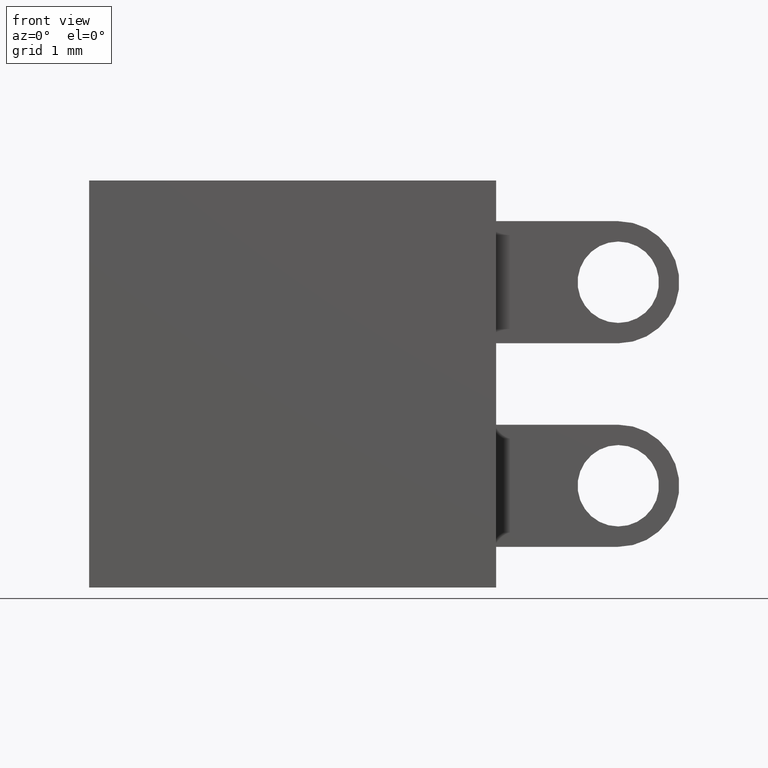
[diagram: clean part render]
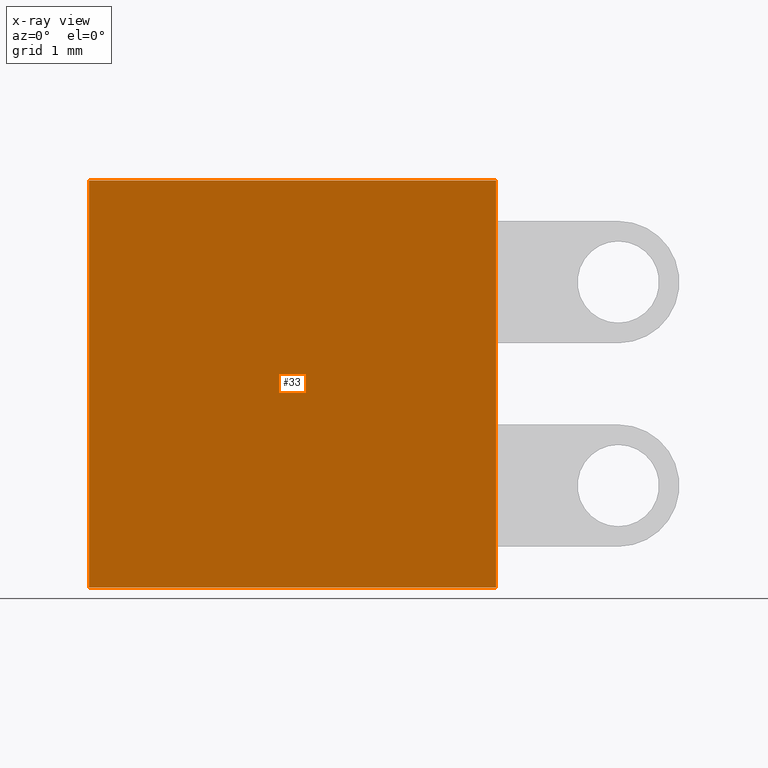
[diagram: x-ray — body ghosted, one internal face saturated and labeled with its STEP entity id]
A machine part, front view, then the same camera in x-ray: the body is ghosted and one INTERNAL B-rep face — a face not visible from any outside direction — is saturated and labeled: STEP entity #33.
In plain terms, the highlighted planar face has unit normal (0, -1, 0).
Its self-contained STEP definition (entity closure, byte-faithful):
#33 = ADVANCED_FACE ( 'NONE', ( #178 ), #985, .F. ) ;
#53 = VECTOR ( 'NONE', #357, 1000.000000000000000 ) ;
#92 = VERTEX_POINT ( 'NONE', #757 ) ;
#111 = EDGE_CURVE ( 'NONE', #92, #1249, #1308, .T. ) ;
#135 = VERTEX_POINT ( 'NONE', #646 ) ;
#178 = FACE_OUTER_BOUND ( 'NONE', #275, .T. ) ;
#204 = ORIENTED_EDGE ( 'NONE', *, *, #111, .F. ) ;
#269 = LINE ( 'NONE', #1336, #543 ) ;
#271 = DIRECTION ( 'NONE',  ( 0.0000000000000000000, -1.000000000000000000, 0.0000000000000000000 ) ) ;
#275 = EDGE_LOOP ( 'NONE', ( #471, #421, #204, #1273 ) ) ;
#310 = VERTEX_POINT ( 'NONE', #1359 ) ;
#355 = EDGE_CURVE ( 'NONE', #310, #92, #1191, .T. ) ;
#357 = DIRECTION ( 'NONE',  ( -0.0000000000000000000, -0.0000000000000000000, 1.000000000000000000 ) ) ;
#421 = ORIENTED_EDGE ( 'NONE', *, *, #1093, .F. ) ;
#471 = ORIENTED_EDGE ( 'NONE', *, *, #857, .F. ) ;
#488 = VECTOR ( 'NONE', #528, 1000.000000000000000 ) ;
#528 = DIRECTION ( 'NONE',  ( -1.000000000000000000, -0.0000000000000000000, -1.734723475976806800E-016 ) ) ;
#543 = VECTOR ( 'NONE', #1017, 1000.000000000000000 ) ;
#574 = CARTESIAN_POINT ( 'NONE',  ( 0.0000000000000000000, -0.1500999999999999800, 0.0000000000000000000 ) ) ;
#640 = LINE ( 'NONE', #1082, #53 ) ;
#646 = CARTESIAN_POINT ( 'NONE',  ( 2.500000000000000000, -0.1500999999999999800, -2.499999999999999600 ) ) ;
#701 = VECTOR ( 'NONE', #954, 1000.000000000000000 ) ;
#757 = CARTESIAN_POINT ( 'NONE',  ( -2.500000000000000400, -0.1500999999999999800, 2.499999999999999600 ) ) ;
#857 = EDGE_CURVE ( 'NONE', #135, #310, #640, .T. ) ;
#878 = DIRECTION ( 'NONE',  ( 0.0000000000000000000, -0.0000000000000000000, -1.000000000000000000 ) ) ;
#954 = DIRECTION ( 'NONE',  ( 0.0000000000000000000, 0.0000000000000000000, -1.000000000000000000 ) ) ;
#985 = PLANE ( 'NONE',  #1324 ) ;
#1017 = DIRECTION ( 'NONE',  ( 1.000000000000000000, 0.0000000000000000000, 1.734723475976806800E-016 ) ) ;
#1082 = CARTESIAN_POINT ( 'NONE',  ( 2.500000000000000000, -0.1500999999999999800, 2.500000000000000400 ) ) ;
#1085 = CARTESIAN_POINT ( 'NONE',  ( -2.500000000000000400, -0.1500999999999999800, 2.499999999999999600 ) ) ;
#1093 = EDGE_CURVE ( 'NONE', #1249, #135, #269, .T. ) ;
#1113 = CARTESIAN_POINT ( 'NONE',  ( -2.500000000000000400, -0.1500999999999999800, -2.500000000000000400 ) ) ;
#1191 = LINE ( 'NONE', #1259, #488 ) ;
#1249 = VERTEX_POINT ( 'NONE', #1113 ) ;
#1259 = CARTESIAN_POINT ( 'NONE',  ( -2.500000000000000400, -0.1500999999999999800, 2.499999999999999600 ) ) ;
#1273 = ORIENTED_EDGE ( 'NONE', *, *, #355, .F. ) ;
#1308 = LINE ( 'NONE', #1085, #701 ) ;
#1324 = AXIS2_PLACEMENT_3D ( 'NONE', #574, #271, #878 ) ;
#1336 = CARTESIAN_POINT ( 'NONE',  ( -2.500000000000000400, -0.1500999999999999800, -2.500000000000000400 ) ) ;
#1359 = CARTESIAN_POINT ( 'NONE',  ( 2.500000000000000000, -0.1500999999999999800, 2.500000000000000400 ) ) ;